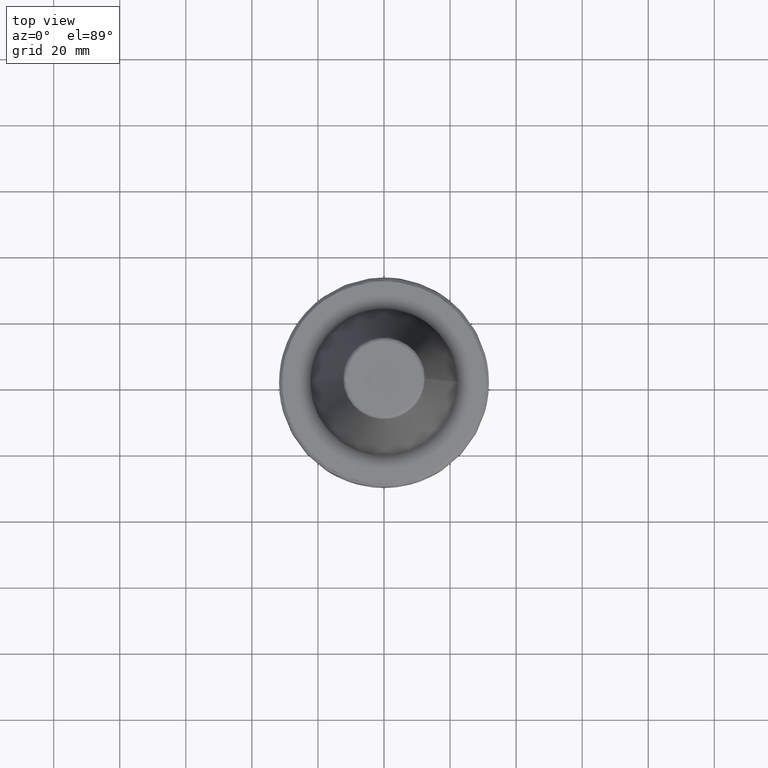
[diagram: clean part render]
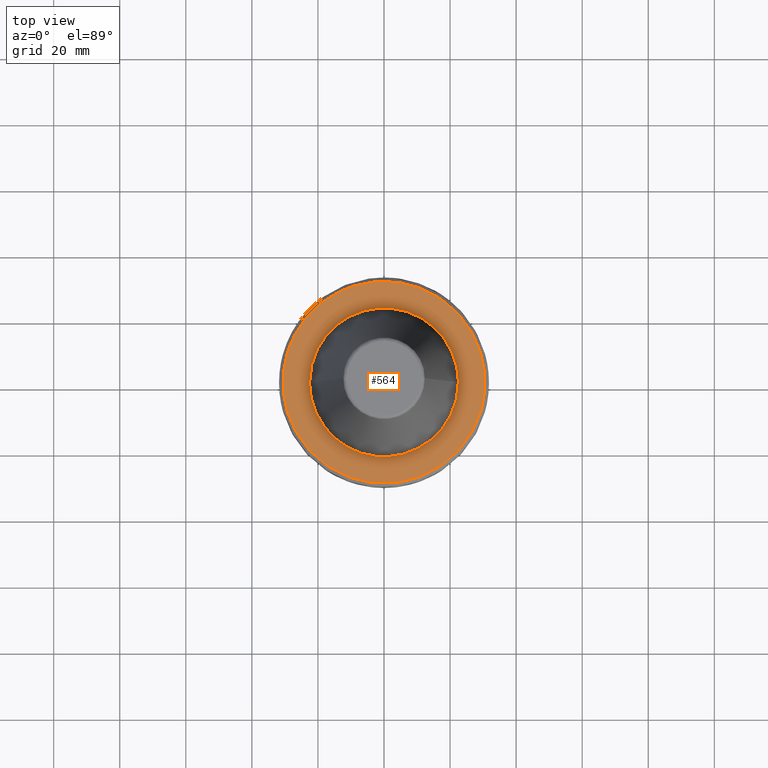
[diagram: same view with one face highlighted and labeled with its STEP entity id]
A machine part, top view. The second image highlights one B-rep face of the part: STEP entity #564.
In plain terms, the highlighted planar face has unit normal (0, 0, 1).
Its self-contained STEP definition (entity closure, byte-faithful):
#9 = CARTESIAN_POINT ( 'NONE',  ( 27.61100680695568600, -13.15427429998765200, -3.200000000000000600 ) ) ;
#20 = CARTESIAN_POINT ( 'NONE',  ( -7.438720675952639600, -29.68542035767848500, -3.199999999999999700 ) ) ;
#52 = CARTESIAN_POINT ( 'NONE',  ( -19.62778218947417800, -23.51603751685868800, -3.199999999999999300 ) ) ;
#58 = CARTESIAN_POINT ( 'NONE',  ( -29.08260568821225400, -9.497984010070885200, -3.199999999999999700 ) ) ;
#62 = CARTESIAN_POINT ( 'NONE',  ( 0.0000000000000000000, 1.466734869172568200E-014, -3.199999999999994400 ) ) ;
#72 = CARTESIAN_POINT ( 'NONE',  ( -3.114025609422949300, -30.46541640380770100, -3.200000000000000200 ) ) ;
#83 = CARTESIAN_POINT ( 'NONE',  ( 26.31643672379539500, -15.62062435595463600, -3.200000000000001100 ) ) ;
#92 = CARTESIAN_POINT ( 'NONE',  ( -22.20554153728639700, -21.03152593330346000, -3.200000000000000200 ) ) ;
#100 = CARTESIAN_POINT ( 'NONE',  ( 29.30593451889330900, 8.749999999999980500, -3.199999999999993500 ) ) ;
#155 = CARTESIAN_POINT ( 'NONE',  ( -12.39175045570897300, 18.78040064549299600, -3.199999999999999700 ) ) ;
#162 = CARTESIAN_POINT ( 'NONE',  ( -4.407618502888016800, 22.06440325785875700, -3.199999999999999300 ) ) ;
#178 = CARTESIAN_POINT ( 'NONE',  ( 4.009555819168163300, 22.13987114982794000, -3.199999999999999700 ) ) ;
#179 = ORIENTED_EDGE ( 'NONE', *, *, #2280, .T. ) ;
#186 = CARTESIAN_POINT ( 'NONE',  ( 21.36063849915200700, -7.086048807701382100, -3.199999999999998800 ) ) ;
#192 = CARTESIAN_POINT ( 'NONE',  ( 11.18287332201877700, 19.53083148215803900, -3.200000000000000600 ) ) ;
#199 = CARTESIAN_POINT ( 'NONE',  ( 17.98264380952407700, -13.61204652636657500, -3.199999999999999700 ) ) ;
#202 = CARTESIAN_POINT ( 'NONE',  ( 9.331192961517226400, -29.12613594598023800, -3.199999999999999300 ) ) ;
#205 = CARTESIAN_POINT ( 'NONE',  ( 18.78040064549280100, 12.39175045570927500, -3.199999999999998800 ) ) ;
#210 = CARTESIAN_POINT ( 'NONE',  ( 8.590524805351991600, -20.79589492657481400, -3.199999999999999700 ) ) ;
#217 = CARTESIAN_POINT ( 'NONE',  ( 22.06440325786003600, 4.407618502884258900, -3.200000000000000200 ) ) ;
#223 = CARTESIAN_POINT ( 'NONE',  ( 2.741286511513688400, -22.37475781689234500, -3.199999999999999700 ) ) ;
#245 = CARTESIAN_POINT ( 'NONE',  ( -7.086048807701388300, -21.36063849915201700, -3.200000000000001100 ) ) ;
#258 = CARTESIAN_POINT ( 'NONE',  ( -13.61204652640028800, -17.98264380950038800, -3.200000000000000200 ) ) ;
#270 = CARTESIAN_POINT ( 'NONE',  ( -20.79589492657008900, -8.590524805360397300, -3.200000000000000200 ) ) ;
#289 = CARTESIAN_POINT ( 'NONE',  ( -22.37479026312430700, -2.741111199249898400, -3.200000000000000600 ) ) ;
#302 = CARTESIAN_POINT ( 'NONE',  ( 13.79955834375945400, -27.29438307719280800, -3.199999999999999700 ) ) ;
#355 = CARTESIAN_POINT ( 'NONE',  ( 26.99856130461180500, -14.37953634110118300, -3.200000000000000200 ) ) ;
#379 = CIRCLE ( 'NONE', #1285, 30.58431457505075100 ) ;
#387 = DIRECTION ( 'NONE',  ( 0.0000000000000000000, -1.000000000000000000, -1.276186135010462200E-016 ) ) ;
#390 = AXIS2_PLACEMENT_3D ( 'NONE', #2706, #1111, #2941 ) ;
#409 = CARTESIAN_POINT ( 'NONE',  ( 5.458850156814379200, -30.10416084471602700, -3.199999999999999700 ) ) ;
#413 = EDGE_CURVE ( 'NONE', #2007, #2800, #379, .T. ) ;
#419 = CARTESIAN_POINT ( 'NONE',  ( -14.35953925149539000, -27.00399422412742800, -3.199999999999999300 ) ) ;
#446 = CARTESIAN_POINT ( 'NONE',  ( -20.95368502148434700, 8.197263642344069000, -3.199999999999999300 ) ) ;
#451 = CARTESIAN_POINT ( 'NONE',  ( -22.50000000000000400, 2.755455298081544800E-015, -3.199999999999999300 ) ) ;
#476 = CARTESIAN_POINT ( 'NONE',  ( -10.69502432680689100, 19.82135572082859200, -3.200000000000000600 ) ) ;
#491 = CARTESIAN_POINT ( 'NONE',  ( -4.183831549484186700, 22.10760170058108200, -3.199999999999999700 ) ) ;
#503 = CARTESIAN_POINT ( 'NONE',  ( 4.071751450878374500, 22.12851860711415200, -3.200000000000000200 ) ) ;
#511 = CARTESIAN_POINT ( 'NONE',  ( 21.03591195338748300, -7.984698353444730200, -3.199999999999999300 ) ) ;
#516 = CARTESIAN_POINT ( 'NONE',  ( 11.99256734167953400, 19.03780993567986700, -3.199999999999999300 ) ) ;
#526 = CARTESIAN_POINT ( 'NONE',  ( 15.36086717163637700, -16.45896426179050900, -3.199999999999999700 ) ) ;
#540 = CARTESIAN_POINT ( 'NONE',  ( 19.82135572083119300, 10.69502432680279600, -3.200000000000000600 ) ) ;
#545 = CARTESIAN_POINT ( 'NONE',  ( 21.54431431264793100, -21.70996927687924600, -3.200000000000000200 ) ) ;
#549 = CARTESIAN_POINT ( 'NONE',  ( 8.370451108365493600, -20.88510905071769100, -3.200000000000001100 ) ) ;
#560 = CARTESIAN_POINT ( 'NONE',  ( 22.10760170058146200, 4.183831549483062200, -3.200000000000000200 ) ) ;
#564 = ADVANCED_FACE ( 'NONE', ( #2639, #2735 ), #1624, .T. ) ;
#566 = CARTESIAN_POINT ( 'NONE',  ( -0.6879287486564484900, -22.50001621479418300, -3.200000000000000200 ) ) ;
#574 = CARTESIAN_POINT ( 'NONE',  ( -22.22708190165376200, 3.501431974159047400, -3.199999999999999700 ) ) ;
#576 = CARTESIAN_POINT ( 'NONE',  ( -7.984698353444732000, -21.03591195338748700, -3.200000000000000200 ) ) ;
#577 = CARTESIAN_POINT ( 'NONE',  ( -27.28410426008951400, -13.84330885026365000, -3.200000000000000200 ) ) ;
#582 = CARTESIAN_POINT ( 'NONE',  ( 8.022211266143289200, -29.51842591295242400, -3.199999999999999300 ) ) ;
#589 = CARTESIAN_POINT ( 'NONE',  ( -9.578915174282531800, -29.04560989628072000, -3.200000000000000200 ) ) ;
#596 = CARTESIAN_POINT ( 'NONE',  ( -16.45896426179448100, -15.36086717162741000, -3.200000000000001100 ) ) ;
#612 = CARTESIAN_POINT ( 'NONE',  ( -20.88510905071626700, -8.370451108368008900, -3.199999999999999700 ) ) ;
#621 = CARTESIAN_POINT ( 'NONE',  ( -18.49999999999999600, 24.35467712833948900, -3.199999999999991300 ) ) ;
#624 = CARTESIAN_POINT ( 'NONE',  ( -16.56085603400545400, 25.82766579420669100, -3.200000000000000200 ) ) ;
#625 = CARTESIAN_POINT ( 'NONE',  ( -22.50000000000000400, 2.755455298081544800E-015, -3.199999999999999300 ) ) ;
#630 = CARTESIAN_POINT ( 'NONE',  ( -14.47569103934079100, 27.05153356260233700, -3.200000000000001100 ) ) ;
#635 = CARTESIAN_POINT ( 'NONE',  ( -12.17478045277671400, 28.05674127324285600, -3.200000000000000600 ) ) ;
#636 = CARTESIAN_POINT ( 'NONE',  ( -12.10176357994678900, 28.08831770797851100, -3.200000000000000200 ) ) ;
#644 = CARTESIAN_POINT ( 'NONE',  ( -11.95872026364780000, 28.14951867897517300, -3.200000000000000200 ) ) ;
#656 = CARTESIAN_POINT ( 'NONE',  ( -11.74385340895946000, 28.24048383201479200, -3.199999999999998800 ) ) ;
#658 = CARTESIAN_POINT ( 'NONE',  ( -11.24038425300771300, 28.44688173158634500, -3.200000000000000200 ) ) ;
#665 = CARTESIAN_POINT ( 'NONE',  ( -10.22499329438831600, 28.83626103397912000, -3.200000000000000600 ) ) ;
#668 = CARTESIAN_POINT ( 'NONE',  ( -9.340167935487325900, 29.12987215588665500, -3.200000000000001100 ) ) ;
#673 = CARTESIAN_POINT ( 'NONE',  ( -8.594763330007086900, 29.35224666533308000, -3.200000000000000200 ) ) ;
#674 = CARTESIAN_POINT ( 'NONE',  ( -8.442993445794760600, 29.39627059819352400, -3.200000000000001500 ) ) ;
#680 = CARTESIAN_POINT ( 'NONE',  ( -8.141340568232401200, 29.48124923291835800, -3.200000000000000600 ) ) ;
#684 = CARTESIAN_POINT ( 'NONE',  ( -7.688059179634872300, 29.60519698498068300, -3.199999999999999700 ) ) ;
#690 = CARTESIAN_POINT ( 'NONE',  ( -6.624788100462759600, 29.86976700628514100, -3.200000000000001100 ) ) ;
#692 = CARTESIAN_POINT ( 'NONE',  ( -5.703788022696000000, 30.05429890996154500, -3.200000000000000200 ) ) ;
#697 = CARTESIAN_POINT ( 'NONE',  ( -3.848954711098727400, 30.36703951691590900, -3.200000000000000200 ) ) ;
#700 = CARTESIAN_POINT ( 'NONE',  ( -2.603266312790086800, 30.49913331156700400, -3.199999999999999700 ) ) ;
#707 = CARTESIAN_POINT ( 'NONE',  ( -1.037282440229544600, 30.56832190550193200, -3.200000000000000600 ) ) ;
#709 = CARTESIAN_POINT ( 'NONE',  ( -0.7285515701980412900, 30.57722589313950900, -3.199999999999999700 ) ) ;
#711 = CARTESIAN_POINT ( 'NONE',  ( -0.1069271606823981000, 30.58574494882358200, -3.200000000000000200 ) ) ;
#714 = CARTESIAN_POINT ( 'NONE',  ( 0.8252062185630970600, 30.58430088160914900, -3.200000000000000600 ) ) ;
#719 = ORIENTED_EDGE ( 'NONE', *, *, #3000, .T. ) ;
#723 = CARTESIAN_POINT ( 'NONE',  ( 1.756429892724695700, 30.54018886217315700, -3.200000000000000600 ) ) ;
#726 = CARTESIAN_POINT ( 'NONE',  ( 2.454392795803937800, 30.48577087148537100, -3.200000000000000200 ) ) ;
#728 = CARTESIAN_POINT ( 'NONE',  ( 2.528533460623735500, 30.47970956005867300, -3.199999999999999700 ) ) ;
#730 = CARTESIAN_POINT ( 'NONE',  ( -18.93590339580232400, 12.15280497094196100, -3.199999999999999700 ) ) ;
#732 = CARTESIAN_POINT ( 'NONE',  ( 2.680059272113283000, 30.46677238502096000, -3.200000000000000200 ) ) ;
#737 = CARTESIAN_POINT ( 'NONE',  ( 2.907181702341881100, 30.44653720226314800, -3.199999999999999300 ) ) ;
#740 = CARTESIAN_POINT ( 'NONE',  ( 3.435970030501877200, 30.39351583441936800, -3.200000000000001500 ) ) ;
#744 = CARTESIAN_POINT ( 'NONE',  ( -27.77681930598629400, -12.80099507029938600, -3.200000000000000200 ) ) ;
#745 = CARTESIAN_POINT ( 'NONE',  ( -4.857303280956157800, -30.19618385838561600, -3.200000000000000600 ) ) ;
#746 = CARTESIAN_POINT ( 'NONE',  ( 4.488890650661606900, 30.26424933309646200, -3.199999999999999700 ) ) ;
#749 = CARTESIAN_POINT ( 'NONE',  ( -20.64043889494947600, 8.988933404968230800, -3.200000000000000600 ) ) ;
#751 = CARTESIAN_POINT ( 'NONE',  ( 6.576107746340010600, 29.91282126790918400, -3.200000000000000600 ) ) ;
#755 = CARTESIAN_POINT ( 'NONE',  ( -22.56109142496701000, -20.65127541911947900, -3.199999999999999700 ) ) ;
#758 = CARTESIAN_POINT ( 'NONE',  ( 8.333223866108296500, 29.45234853339185200, -3.200000000000000200 ) ) ;
#763 = CIRCLE ( 'NONE', #1058, 30.58431457505075100 ) ;
#766 = CARTESIAN_POINT ( 'NONE',  ( 11.80488663217959200, 28.31907149283381000, -3.199999999999999700 ) ) ;
#772 = CARTESIAN_POINT ( 'NONE',  ( 24.36043102570795300, -18.50078877833959000, -3.199999999999999700 ) ) ;
#773 = CARTESIAN_POINT ( 'NONE',  ( -24.35467712833948200, 18.50000000000000000, -3.199999999999992200 ) ) ;
#774 = CARTESIAN_POINT ( 'NONE',  ( 13.99881594514026300, 27.30134385075362900, -3.200000000000000200 ) ) ;
#785 = CARTESIAN_POINT ( 'NONE',  ( 16.13498759199469400, 25.98207429179466400, -3.200000000000000200 ) ) ;
#789 = CARTESIAN_POINT ( 'NONE',  ( 16.20252111302220800, 25.94001894739672000, -3.200000000000000600 ) ) ;
#796 = CARTESIAN_POINT ( 'NONE',  ( 16.33427142386733900, 25.85726144148922100, -3.200000000000000200 ) ) ;
#798 = CARTESIAN_POINT ( 'NONE',  ( 22.63882571492048600, -20.58104395216734200, -3.200000000000000200 ) ) ;
#801 = CARTESIAN_POINT ( 'NONE',  ( 16.53138120580552700, 25.73240088654140200, -3.199999999999999700 ) ) ;
#803 = CARTESIAN_POINT ( 'NONE',  ( 16.98769424002150100, 25.43598951905729100, -3.200000000000000200 ) ) ;
#805 = CARTESIAN_POINT ( 'NONE',  ( 17.88588114722745500, 24.82288649366540800, -3.200000000000000200 ) ) ;
#807 = CARTESIAN_POINT ( 'NONE',  ( 18.63100279130232900, 24.26260340260329700, -3.199999999999999300 ) ) ;
#813 = CARTESIAN_POINT ( 'NONE',  ( 19.23818591257809300, 23.77638626441000000, -3.200000000000000200 ) ) ;
#818 = CARTESIAN_POINT ( 'NONE',  ( 19.36078262650642800, 23.67667543167849300, -3.200000000000001100 ) ) ;
#824 = CARTESIAN_POINT ( 'NONE',  ( 19.60237854233164600, 23.47705769606649500, -3.200000000000001100 ) ) ;
#825 = CARTESIAN_POINT ( 'NONE',  ( 19.96233499371120600, 23.17496761740666100, -3.200000000000000200 ) ) ;
#828 = CARTESIAN_POINT ( 'NONE',  ( 20.78517142375569200, 22.45144644050765900, -3.200000000000000200 ) ) ;
#830 = CARTESIAN_POINT ( 'NONE',  ( -24.73772846015907600, -18.00390437552178100, -3.200000000000000600 ) ) ;
#834 = CARTESIAN_POINT ( 'NONE',  ( 21.46121072406610600, 21.79932372883518700, -3.200000000000000200 ) ) ;
#836 = CARTESIAN_POINT ( 'NONE',  ( -8.896980882711639900, 20.66783356944006700, -3.199999999999999700 ) ) ;
#840 = CARTESIAN_POINT ( 'NONE',  ( 22.77429056695474300, 20.45246270162109400, -3.200000000000001100 ) ) ;
#842 = CARTESIAN_POINT ( 'NONE',  ( 23.59206616273494100, 19.50355204636023000, -3.199999999999999700 ) ) ;
#846 = CARTESIAN_POINT ( 'NONE',  ( 24.54047191476543300, 18.25550594148994000, -3.200000000000000600 ) ) ;
#847 = CARTESIAN_POINT ( 'NONE',  ( -4.115307463143350800, 22.12045849206799600, -3.199999999999999700 ) ) ;
#848 = CARTESIAN_POINT ( 'NONE',  ( 24.72355445175357900, 18.00675945254044300, -3.200000000000000200 ) ) ;
#849 = CARTESIAN_POINT ( 'NONE',  ( 25.08445269893013600, 17.50055599937444800, -3.200000000000000200 ) ) ;
#850 = CARTESIAN_POINT ( 'NONE',  ( 25.61393462947731700, 16.73340307638303400, -3.200000000000000200 ) ) ;
#851 = CARTESIAN_POINT ( 'NONE',  ( 22.31609819896382200, -2.907458251744042200, -3.200000000000000600 ) ) ;
#852 = CARTESIAN_POINT ( 'NONE',  ( 26.10782023937147400, 15.94270692366432000, -3.200000000000000200 ) ) ;
#858 = CARTESIAN_POINT ( 'NONE',  ( 13.89121605744946600, -27.24785232258912500, -3.199999999999998800 ) ) ;
#861 = CARTESIAN_POINT ( 'NONE',  ( 5.873028755120320600, 21.74157624393063400, -3.200000000000000600 ) ) ;
#863 = CARTESIAN_POINT ( 'NONE',  ( 26.46043628646557600, 15.33791319426163500, -3.199999999999999300 ) ) ;
#864 = CARTESIAN_POINT ( 'NONE',  ( 26.49765628487140000, 15.27351905694589700, -3.200000000000000600 ) ) ;
#867 = CARTESIAN_POINT ( 'NONE',  ( 26.57327955334312700, 15.14158967653228200, -3.199999999999999300 ) ) ;
#868 = CARTESIAN_POINT ( 'NONE',  ( 20.95368502148340500, -8.197263642347369500, -3.199999999999999700 ) ) ;
#870 = CARTESIAN_POINT ( 'NONE',  ( 8.703095408790513700, -29.32115263378182800, -3.199999999999999700 ) ) ;
#876 = CARTESIAN_POINT ( 'NONE',  ( 26.68593816532839800, 14.94335966608096700, -3.200000000000000600 ) ) ;
#878 = EDGE_LOOP ( 'NONE', ( #1134, #1409, #4117, #3799, #1494, #1047 ) ) ;
#879 = CARTESIAN_POINT ( 'NONE',  ( 12.23098025896375600, 18.88550870197690300, -3.199999999999999700 ) ) ;
#881 = CARTESIAN_POINT ( 'NONE',  ( 26.94337422490445300, 14.47847139621148000, -3.199999999999999300 ) ) ;
#882 = CARTESIAN_POINT ( 'NONE',  ( 27.43651020383163100, 13.53928854120698800, -3.200000000000001500 ) ) ;
#886 = CARTESIAN_POINT ( 'NONE',  ( 13.42792791067997600, -18.06135158014202000, -3.199999999999999700 ) ) ;
#887 = CARTESIAN_POINT ( 'NONE',  ( 28.33583760078616000, 11.62329757013587900, -3.200000000000000600 ) ) ;
#895 = CARTESIAN_POINT ( 'NONE',  ( 20.66783356944120300, 8.896980882709847500, -3.200000000000000200 ) ) ;
#896 = CARTESIAN_POINT ( 'NONE',  ( 29.30593451889330900, 8.749999999999980500, -3.199999999999993500 ) ) ;
#899 = CARTESIAN_POINT ( 'NONE',  ( -14.17277443620453800, -27.10247095660120900, -3.199999999999999300 ) ) ;
#900 = CARTESIAN_POINT ( 'NONE',  ( 7.603831144541866000, -21.18878749288407800, -3.200000000000000200 ) ) ;
#902 = CARTESIAN_POINT ( 'NONE',  ( 28.95764183663322900, 9.916519147397023600, -3.200000000000000200 ) ) ;
#909 = CARTESIAN_POINT ( 'NONE',  ( 22.12045798509555900, 4.115310202398825700, -3.200000000000000600 ) ) ;
#910 = CARTESIAN_POINT ( 'NONE',  ( 13.33348093168641700, -27.52628396581056700, -3.200000000000000200 ) ) ;
#912 = CARTESIAN_POINT ( 'NONE',  ( -2.907343231839132800, -22.31611948088118800, -3.200000000000000600 ) ) ;
#918 = VERTEX_POINT ( 'NONE', #1662 ) ;
#938 = CARTESIAN_POINT ( 'NONE',  ( -8.197263642347373000, -20.95368502148340900, -3.199999999999999700 ) ) ;
#940 = EDGE_LOOP ( 'NONE', ( #179, #719 ) ) ;
#953 = CARTESIAN_POINT ( 'NONE',  ( -18.06135158014722800, -13.42792791066820300, -3.200000000000000600 ) ) ;
#958 = B_SPLINE_CURVE_WITH_KNOTS ( 'NONE', 3,
 ( #2775, #58, #4005, #2847, #1548, #744, #3828, #3204, #1185, #577, #3209, #4136, #4012, #2488, #2450, #1811, #1400, #830, #1752, #1452, #755, #2236, #92, #1375, #1219, #52, #1052, #3919, #2805, #983, #419, #899, #2540, #1046, #1776, #4025, #3613, #2758, #589, #3953, #3878, #1254, #20, #2836, #1478, #3034, #745, #1678, #990, #72, #1862, #1338, #2962, #1813, #1993, #1326, #3766, #1156, #3068, #409, #2647, #582, #870, #1529, #3341, #2752, #202, #2203, #1736, #2831, #910, #2537, #302, #858, #1245, #1144, #3914, #3337, #1926, #545, #3989, #3482, #1516, #798, #2545, #772, #3585, #3968, #3820, #2330, #1484, #2667, #83, #355, #2289, #3721, #1095, #1368, #9, #4003, #3574, #2997 ),
 .UNSPECIFIED., .F., .F.,
 ( 4, 1, 1, 1, 1, 2, 2, 1, 1, 1, 1, 2, 2, 1, 1, 1, 2, 2, 2, 1, 1, 1, 2, 2, 1, 1, 1, 1, 2, 2, 1, 1, 1, 1, 2, 2, 2, 1, 1, 1, 1, 2, 2, 1, 1, 1, 1, 2, 2, 1, 1, 1, 2, 2, 2, 1, 1, 1, 2, 2, 1, 1, 1, 1, 2, 2, 1, 1, 1, 1, 2, 2, 4 ),
 ( 0.0000000000000000000, 0.03125000000000009000, 0.04687500000000010400, 0.05468750000000011100, 0.05859375000000011100, 0.06054687500000011100, 0.06250000000000011100, 0.09374999999999979200, 0.1093749999999996400, 0.1171874999999995600, 0.1210937499999994600, 0.1230468749999994000, 0.1249999999999993300, 0.1562499999999971400, 0.1718749999999961400, 0.1796874999999955900, 0.1835937499999953900, 0.1874999999999952000, 0.2499999999999946700, 0.2812499999999943900, 0.2968749999999942800, 0.3046874999999943400, 0.3085937499999943400, 0.3124999999999943400, 0.3437499999999940000, 0.3593749999999938400, 0.3671874999999937300, 0.3710937499999936700, 0.3730468749999936700, 0.3749999999999936700, 0.4062499999999942800, 0.4218749999999945600, 0.4296874999999946700, 0.4335937499999947800, 0.4355468749999948400, 0.4374999999999948900, 0.4999999999999958900, 0.5312499999999964500, 0.5468749999999966700, 0.5546874999999967800, 0.5585937499999968900, 0.5605468749999968900, 0.5624999999999968900, 0.5937499999999971100, 0.6093749999999973400, 0.6171874999999973400, 0.6210937499999973400, 0.6230468749999973400, 0.6249999999999973400, 0.6562499999999973400, 0.6718749999999972200, 0.6796874999999973400, 0.6835937499999973400, 0.6874999999999973400, 0.7499999999999970000, 0.7812499999999968900, 0.7968749999999970000, 0.8046874999999970000, 0.8085937499999970000, 0.8124999999999970000, 0.8437499999999972200, 0.8593749999999973400, 0.8671874999999975600, 0.8710937499999976700, 0.8730468749999976700, 0.8749999999999976700, 0.9062499999999982200, 0.9218749999999984500, 0.9296874999999985600, 0.9335937499999986700, 0.9355468749999987800, 0.9374999999999988900, 1.000000000000000000 ),
 .UNSPECIFIED. ) ;
#963 = CARTESIAN_POINT ( 'NONE',  ( -21.18878749287234700, -7.603831144579803700, -3.199999999999998800 ) ) ;
#983 = CARTESIAN_POINT ( 'NONE',  ( -14.63881711983233200, -26.85489300922699100, -3.200000000000000600 ) ) ;
#990 = CARTESIAN_POINT ( 'NONE',  ( -4.705085878603386900, -30.22027126947340700, -3.200000000000000600 ) ) ;
#1002 = CARTESIAN_POINT ( 'NONE',  ( -22.50000000000000400, 2.755455298081544800E-015, -3.199999999999999300 ) ) ;
#1046 = CARTESIAN_POINT ( 'NONE',  ( -13.24394569621862800, -27.58067624819064200, -3.200000000000000600 ) ) ;
#1047 = ORIENTED_EDGE ( 'NONE', *, *, #2811, .T. ) ;
#1052 = CARTESIAN_POINT ( 'NONE',  ( -17.59524950982610700, -25.03042619208500200, -3.200000000000000200 ) ) ;
#1058 = AXIS2_PLACEMENT_3D ( 'NONE', #62, #2368, #387 ) ;
#1065 = CARTESIAN_POINT ( 'NONE',  ( -21.03591195339058500, 7.984698353433742600, -3.200000000000000600 ) ) ;
#1095 = CARTESIAN_POINT ( 'NONE',  ( 27.54438001541412700, -13.29323302809357600, -3.200000000000000200 ) ) ;
#1104 = CARTESIAN_POINT ( 'NONE',  ( -26.43773944749311900, 15.48610090931968700, -3.200000000000000600 ) ) ;
#1111 = DIRECTION ( 'NONE',  ( 0.0000000000000000000, 0.0000000000000000000, 1.000000000000000000 ) ) ;
#1116 = EDGE_CURVE ( 'NONE', #2800, #3380, #1699, .T. ) ;
#1134 = ORIENTED_EDGE ( 'NONE', *, *, #1716, .T. ) ;
#1140 = CARTESIAN_POINT ( 'NONE',  ( -12.63533988221804100, 18.61742605470986000, -3.200000000000000200 ) ) ;
#1144 = CARTESIAN_POINT ( 'NONE',  ( 16.91770336017261700, -25.53517509609310600, -3.200000000000000200 ) ) ;
#1154 = CARTESIAN_POINT ( 'NONE',  ( -8.458563634142274500, 20.84958280862222700, -3.200000000000000200 ) ) ;
#1156 = CARTESIAN_POINT ( 'NONE',  ( 4.560392810196569600, -30.24244440558976200, -3.200000000000001100 ) ) ;
#1162 = CARTESIAN_POINT ( 'NONE',  ( 22.50000000000000400, 0.0000000000000000000, -3.199999999999999300 ) ) ;
#1173 = CARTESIAN_POINT ( 'NONE',  ( -1.375857497237935400, 22.49996757040714000, -3.199999999999999700 ) ) ;
#1178 = CARTESIAN_POINT ( 'NONE',  ( 22.17743819738469600, -3.797954953886299600, -3.200000000000000600 ) ) ;
#1185 = CARTESIAN_POINT ( 'NONE',  ( -27.65365956857718600, -13.06437642884289800, -3.200000000000000200 ) ) ;
#1187 = CARTESIAN_POINT ( 'NONE',  ( 7.686207123274499500, 21.14787063409919600, -3.200000000000000600 ) ) ;
#1194 = CARTESIAN_POINT ( 'NONE',  ( 20.64043889494423200, -8.988933404973398200, -3.200000000000001100 ) ) ;
#1200 = CARTESIAN_POINT ( 'NONE',  ( 14.81177920650271000, 17.00797338683744500, -3.200000000000000600 ) ) ;
#1207 = CARTESIAN_POINT ( 'NONE',  ( 12.63533988221884200, -18.61742605471019700, -3.200000000000000200 ) ) ;
#1216 = CARTESIAN_POINT ( 'NONE',  ( 20.84958280862257900, 8.458563634141711400, -3.200000000000000200 ) ) ;
#1219 = CARTESIAN_POINT ( 'NONE',  ( -20.89129424423141800, -22.40114452925218900, -3.200000000000000200 ) ) ;
#1221 = CARTESIAN_POINT ( 'NONE',  ( -22.13986916256529700, 4.009566559497096200, -3.200000000000000200 ) ) ;
#1223 = CARTESIAN_POINT ( 'NONE',  ( 5.341505914814308500, -21.86223353763812900, -3.199999999999999700 ) ) ;
#1238 = CARTESIAN_POINT ( 'NONE',  ( 22.50000000000000400, 1.376388306145680500, -3.200000000000000200 ) ) ;
#1245 = CARTESIAN_POINT ( 'NONE',  ( 15.48792760815194000, -26.42690957762343400, -3.199999999999998400 ) ) ;
#1246 = CARTESIAN_POINT ( 'NONE',  ( -3.797919010166013600, -22.17744484798386800, -3.200000000000001100 ) ) ;
#1254 = CARTESIAN_POINT ( 'NONE',  ( -8.608449995097272400, -29.35905586417358700, -3.199999999999999700 ) ) ;
#1262 = CARTESIAN_POINT ( 'NONE',  ( -8.988933404976533500, -20.64043889494298900, -3.199999999999999700 ) ) ;
#1273 = CARTESIAN_POINT ( 'NONE',  ( -18.61742605471202700, -12.63533988221470800, -3.199999999999999700 ) ) ;
#1285 = AXIS2_PLACEMENT_3D ( 'NONE', #1874, #2605, #2974 ) ;
#1290 = CARTESIAN_POINT ( 'NONE',  ( -22.15133245634663700, 3.946100473368277900, -3.200000000000000200 ) ) ;
#1291 = CARTESIAN_POINT ( 'NONE',  ( -21.86223353762273500, -5.341505914864100600, -3.200000000000000600 ) ) ;
#1326 = CARTESIAN_POINT ( 'NONE',  ( 4.319105167327790300, -30.27808647421277000, -3.199999999999999300 ) ) ;
#1338 = CARTESIAN_POINT ( 'NONE',  ( 0.7805261269163517000, -30.58432787733083600, -3.200000000000001100 ) ) ;
#1362 = CARTESIAN_POINT ( 'NONE',  ( -29.30593451889329200, 8.750000000000033800, -3.199999999999993500 ) ) ;
#1368 = CARTESIAN_POINT ( 'NONE',  ( 27.58831379343226000, -13.20180910046797300, -3.199999999999998800 ) ) ;
#1375 = CARTESIAN_POINT ( 'NONE',  ( -22.13473294562368900, -21.10604030068857600, -3.199999999999999700 ) ) ;
#1400 = CARTESIAN_POINT ( 'NONE',  ( -25.23910393721066500, -17.27398592321673800, -3.200000000000001100 ) ) ;
#1409 = ORIENTED_EDGE ( 'NONE', *, *, #1440, .T. ) ;
#1435 = CARTESIAN_POINT ( 'NONE',  ( -28.78023418527451600, 10.51070166326775800, -3.200000000000000200 ) ) ;
#1440 = EDGE_CURVE ( 'NONE', #4080, #2007, #958, .T. ) ;
#1441 = VERTEX_POINT ( 'NONE', #1362 ) ;
#1452 = CARTESIAN_POINT ( 'NONE',  ( -23.04904609324316300, -20.11097302514834300, -3.199999999999999700 ) ) ;
#1461 = CARTESIAN_POINT ( 'NONE',  ( -22.13216582914423100, 4.051871761184235000, -3.200000000000000200 ) ) ;
#1478 = CARTESIAN_POINT ( 'NONE',  ( -5.357254148549006200, -30.11268354678315300, -3.200000000000000200 ) ) ;
#1482 = CARTESIAN_POINT ( 'NONE',  ( -17.00797338682269500, 14.81177920651246400, -3.200000000000000600 ) ) ;
#1484 = CARTESIAN_POINT ( 'NONE',  ( 25.18089566416714200, -17.35872434408001300, -3.200000000000000200 ) ) ;
#1494 = ORIENTED_EDGE ( 'NONE', *, *, #2725, .T. ) ;
#1501 = CARTESIAN_POINT ( 'NONE',  ( -8.324524703927975700, 20.90345235396907600, -3.199999999999999700 ) ) ;
#1514 = CARTESIAN_POINT ( 'NONE',  ( 1.715646394992351700, 22.45307472456536100, -3.200000000000000600 ) ) ;
#1516 = CARTESIAN_POINT ( 'NONE',  ( 21.98943496481060900, -21.25737027114399100, -3.199999999999999700 ) ) ;
#1518 = CARTESIAN_POINT ( 'NONE',  ( -20.98673507276603100, 8.112282896141666200, -3.200000000000000600 ) ) ;
#1519 = CARTESIAN_POINT ( 'NONE',  ( 22.13986916256529000, -4.009566559498702000, -3.199999999999999300 ) ) ;
#1522 = CARTESIAN_POINT ( 'NONE',  ( 8.112282896138385300, 20.98673507276721400, -3.200000000000000200 ) ) ;
#1529 = CARTESIAN_POINT ( 'NONE',  ( 9.042334779831751500, -29.21737119051607600, -3.200000000000000200 ) ) ;
#1530 = CARTESIAN_POINT ( 'NONE',  ( 19.53083148214621900, -11.18287332203636600, -3.200000000000000200 ) ) ;
#1541 = CARTESIAN_POINT ( 'NONE',  ( 17.23607257883289300, 14.49938022713325700, -3.200000000000000200 ) ) ;
#1548 = CARTESIAN_POINT ( 'NONE',  ( -27.91867295085388500, -12.49063015164102500, -3.200000000000000200 ) ) ;
#1549 = CARTESIAN_POINT ( 'NONE',  ( 12.39175045571029600, -18.78040064549236700, -3.200000000000000200 ) ) ;
#1558 = CARTESIAN_POINT ( 'NONE',  ( 20.90345235396888100, 8.324524703928553000, -3.200000000000000200 ) ) ;
#1564 = CARTESIAN_POINT ( 'NONE',  ( 4.407618502877016700, -22.06440325786277500, -3.200000000000000600 ) ) ;
#1578 = CARTESIAN_POINT ( 'NONE',  ( -4.009555819172765800, -22.13987114982767300, -3.200000000000000200 ) ) ;
#1595 = CARTESIAN_POINT ( 'NONE',  ( -11.18287332204048700, -19.53083148214458500, -3.200000000000000600 ) ) ;
#1612 = CARTESIAN_POINT ( 'NONE',  ( -17.98264380950361400, 13.61204652639205500, -3.199999999999999700 ) ) ;
#1613 = CARTESIAN_POINT ( 'NONE',  ( -18.78040064549380300, -12.39175045570773800, -3.200000000000000600 ) ) ;
#1622 = CARTESIAN_POINT ( 'NONE',  ( -22.06440325785796100, -4.407618502892575000, -3.200000000000000200 ) ) ;
#1624 = PLANE ( 'NONE',  #390 ) ;
#1662 = CARTESIAN_POINT ( 'NONE',  ( 22.50000000000000400, 0.0000000000000000000, -3.199999999999999300 ) ) ;
#1678 = CARTESIAN_POINT ( 'NONE',  ( -4.757131534854949000, -30.21212539776216800, -3.200000000000000600 ) ) ;
#1699 = B_SPLINE_CURVE_WITH_KNOTS ( 'NONE', 3,
 ( #896, #902, #887, #882, #881, #876, #867, #864, #863, #852, #850, #849, #848, #846, #842, #840, #834, #828, #825, #824, #818, #813, #807, #805, #803, #801, #796, #789, #785, #774, #766, #758, #751, #746, #740, #737, #732, #728, #726, #723, #714, #711, #709, #707, #700, #697, #692, #690, #684, #680, #674, #673, #668, #665, #658, #656, #644, #636, #635, #630, #624, #621 ),
 .UNSPECIFIED., .F., .F.,
 ( 4, 1, 1, 1, 1, 2, 2, 1, 2, 2, 2, 1, 1, 2, 2, 1, 1, 1, 2, 2, 2, 1, 1, 1, 1, 2, 2, 1, 2, 2, 2, 1, 1, 2, 2, 1, 1, 1, 2, 2, 4 ),
 ( 0.0000000000000000000, 0.06249999999999734900, 0.09374999999999600300, 0.1093749999999953200, 0.1171874999999950300, 0.1210937499999949600, 0.1249999999999948900, 0.1562499999999950900, 0.1718749999999952500, 0.1874999999999954200, 0.2499999999999961700, 0.2812499999999964500, 0.2968749999999966700, 0.3046874999999968400, 0.3124999999999970000, 0.3437499999999977800, 0.3593749999999981700, 0.3671874999999983300, 0.3710937499999984500, 0.3749999999999985600, 0.4999999999999987800, 0.5624999999999988900, 0.5937499999999990000, 0.6093749999999990000, 0.6171874999999990000, 0.6210937499999990000, 0.6249999999999990000, 0.6562499999999988900, 0.6718749999999988900, 0.6874999999999988900, 0.7499999999999987800, 0.7812499999999988900, 0.7968749999999988900, 0.8046874999999988900, 0.8124999999999988900, 0.8437499999999987800, 0.8593749999999986700, 0.8671874999999986700, 0.8710937499999986700, 0.8749999999999987800, 1.000000000000000000 ),
 .UNSPECIFIED. ) ;
#1713 = CARTESIAN_POINT ( 'NONE',  ( 29.30593451889329200, -8.750000000000001800, -3.199999999999995300 ) ) ;
#1716 = EDGE_CURVE ( 'NONE', #1441, #4080, #3515, .T. ) ;
#1718 = CARTESIAN_POINT ( 'NONE',  ( -22.45304634867162000, 1.715799754908170300, -3.200000000000000600 ) ) ;
#1727 = CARTESIAN_POINT ( 'NONE',  ( -19.53083148215308600, 11.18287332202958400, -3.199999999999999300 ) ) ;
#1736 = CARTESIAN_POINT ( 'NONE',  ( 11.34454123682887200, -28.42400519016858600, -3.200000000000001100 ) ) ;
#1752 = CARTESIAN_POINT ( 'NONE',  ( -23.99031363752471800, -19.00230350504062900, -3.200000000000000200 ) ) ;
#1776 = CARTESIAN_POINT ( 'NONE',  ( -12.11250377919313700, -28.10533704282527600, -3.200000000000001100 ) ) ;
#1781 = CARTESIAN_POINT ( 'NONE',  ( -12.47437238289334600, 18.72563884435544800, -3.200000000000000200 ) ) ;
#1809 = CARTESIAN_POINT ( 'NONE',  ( -15.36086717163463800, 16.45896426178976300, -3.200000000000001100 ) ) ;
#1811 = CARTESIAN_POINT ( 'NONE',  ( -25.26695455758237000, -17.23321866383328400, -3.200000000000001100 ) ) ;
#1813 = CARTESIAN_POINT ( 'NONE',  ( 3.304367424488805000, -30.40973943781709500, -3.200000000000000600 ) ) ;
#1820 = CARTESIAN_POINT ( 'NONE',  ( -6.571610993404996200, 21.54071728403503300, -3.199999999999999700 ) ) ;
#1835 = CARTESIAN_POINT ( 'NONE',  ( 3.501364879195867800, 22.22709431610727600, -3.200000000000000600 ) ) ;
#1844 = CARTESIAN_POINT ( 'NONE',  ( 22.12851860711453600, -4.071751450877114200, -3.200000000000000200 ) ) ;
#1853 = CARTESIAN_POINT ( 'NONE',  ( 8.237955812653522600, 20.93772414133914200, -3.199999999999999700 ) ) ;
#1861 = CARTESIAN_POINT ( 'NONE',  ( 19.03780993567572800, -11.99256734168571200, -3.200000000000000200 ) ) ;
#1862 = CARTESIAN_POINT ( 'NONE',  ( -1.561052253832720300, -30.58428797049064600, -3.200000000000001100 ) ) ;
#1869 = CARTESIAN_POINT ( 'NONE',  ( 18.45365423866382000, 12.87560569879649600, -3.200000000000000200 ) ) ;
#1874 = CARTESIAN_POINT ( 'NONE',  ( 0.0000000000000000000, 1.466734869172568200E-014, -3.199999999999994400 ) ) ;
#1875 = CARTESIAN_POINT ( 'NONE',  ( 10.69502432678837800, -19.82135572083744200, -3.199999999999999700 ) ) ;
#1882 = CARTESIAN_POINT ( 'NONE',  ( 21.54071728404044400, 6.571610993388965500, -3.200000000000000200 ) ) ;
#1886 = CARTESIAN_POINT ( 'NONE',  ( 4.183831549480899500, -22.10760170058227900, -3.200000000000000200 ) ) ;
#1907 = CARTESIAN_POINT ( 'NONE',  ( -4.071751450877116900, -22.12851860711453300, -3.199999999999999700 ) ) ;
#1918 = CARTESIAN_POINT ( 'NONE',  ( -22.50000000000000700, 0.6880163828565797300, -3.200000000000001100 ) ) ;
#1919 = CARTESIAN_POINT ( 'NONE',  ( -11.99256734168715800, -19.03780993567515600, -3.200000000000000200 ) ) ;
#1926 = CARTESIAN_POINT ( 'NONE',  ( 21.01696416252155700, -22.22623960065148900, -3.199999999999999300 ) ) ;
#1930 = CARTESIAN_POINT ( 'NONE',  ( -19.82135572081725200, -10.69502432682423000, -3.200000000000000600 ) ) ;
#1944 = CARTESIAN_POINT ( 'NONE',  ( -22.10760170058084000, -4.183831549485550900, -3.200000000000000200 ) ) ;
#1993 = CARTESIAN_POINT ( 'NONE',  ( 3.981098828325630100, -30.32522191696599000, -3.200000000000001100 ) ) ;
#2007 = VERTEX_POINT ( 'NONE', #1713 ) ;
#2114 = CARTESIAN_POINT ( 'NONE',  ( -14.49938022714616500, 17.23607257882436300, -3.199999999999999700 ) ) ;
#2127 = CARTESIAN_POINT ( 'NONE',  ( -21.36063849916189700, 7.086048807666240500, -3.199999999999999300 ) ) ;
#2137 = CARTESIAN_POINT ( 'NONE',  ( -13.42792791067768300, 18.06135158014102500, -3.200000000000000200 ) ) ;
#2152 = CARTESIAN_POINT ( 'NONE',  ( -4.719991316688983800, 22.00072453872944300, -3.200000000000000600 ) ) ;
#2160 = CARTESIAN_POINT ( 'NONE',  ( 22.49999999999999600, -0.6880163828697204400, -3.199999999999998800 ) ) ;
#2170 = CARTESIAN_POINT ( 'NONE',  ( 3.946081902440961000, 22.15133589249003200, -3.200000000000000600 ) ) ;
#2176 = CARTESIAN_POINT ( 'NONE',  ( 21.74157624390884500, -5.873028755191072900, -3.200000000000000200 ) ) ;
#2181 = CARTESIAN_POINT ( 'NONE',  ( 10.02279629557633300, 20.16961076430403600, -3.200000000000000600 ) ) ;
#2188 = CARTESIAN_POINT ( 'NONE',  ( 18.88550870197563500, -12.23098025896565000, -3.200000000000000200 ) ) ;
#2190 = CARTESIAN_POINT ( 'NONE',  ( -29.30593451889329900, -8.749999999999978700, -3.199999999999995300 ) ) ;
#2200 = CARTESIAN_POINT ( 'NONE',  ( 18.72563884435662000, 12.47437238289156800, -3.199999999999999300 ) ) ;
#2203 = CARTESIAN_POINT ( 'NONE',  ( 10.17404257736498800, -28.85454279252668600, -3.199999999999999700 ) ) ;
#2206 = CARTESIAN_POINT ( 'NONE',  ( 8.896980882703543300, -20.66783356944393200, -3.199999999999999300 ) ) ;
#2215 = CARTESIAN_POINT ( 'NONE',  ( 22.00072453873180600, 4.719991316681966300, -3.200000000000000200 ) ) ;
#2222 = CARTESIAN_POINT ( 'NONE',  ( 4.115307463144500100, -22.12045849206793200, -3.200000000000000600 ) ) ;
#2234 = CARTESIAN_POINT ( 'NONE',  ( -5.873028755191068500, -21.74157624390884200, -3.200000000000001100 ) ) ;
#2236 = CARTESIAN_POINT ( 'NONE',  ( -22.34825637510536800, -20.87982665237509000, -3.200000000000000200 ) ) ;
#2245 = CARTESIAN_POINT ( 'NONE',  ( -12.23098025896354500, -18.88550870197710900, -3.200000000000000200 ) ) ;
#2261 = CARTESIAN_POINT ( 'NONE',  ( -20.66783356943510700, -8.896980882719226700, -3.200000000000000200 ) ) ;
#2278 = CARTESIAN_POINT ( 'NONE',  ( -22.12045798509555200, -4.115310202398622300, -3.200000000000000200 ) ) ;
#2280 = EDGE_CURVE ( 'NONE', #3856, #918, #4008, .T. ) ;
#2289 = CARTESIAN_POINT ( 'NONE',  ( 27.32133677086658000, -13.74839770497310600, -3.199999999999999700 ) ) ;
#2330 = CARTESIAN_POINT ( 'NONE',  ( 25.15049554832426500, -17.40274506740398400, -3.199999999999999300 ) ) ;
#2368 = DIRECTION ( 'NONE',  ( -0.0000000000000000000, -1.224606353822377300E-016, 1.000000000000000000 ) ) ;
#2447 = VERTEX_POINT ( 'NONE', #3831 ) ;
#2450 = CARTESIAN_POINT ( 'NONE',  ( -25.32397030503437600, -17.14932757286770800, -3.199999999999999700 ) ) ;
#2458 = CARTESIAN_POINT ( 'NONE',  ( -19.03780993567813700, 11.99256734168333200, -3.200000000000000200 ) ) ;
#2469 = CARTESIAN_POINT ( 'NONE',  ( -11.67597141481949700, 19.24838585783297900, -3.200000000000001100 ) ) ;
#2481 = CARTESIAN_POINT ( 'NONE',  ( -4.251028217307362100, 22.09485092206773900, -3.200000000000001100 ) ) ;
#2488 = CARTESIAN_POINT ( 'NONE',  ( -25.40916637817199900, -17.02330348438457400, -3.200000000000000600 ) ) ;
#2490 = CARTESIAN_POINT ( 'NONE',  ( 4.051866326834534100, 22.13216683465163800, -3.200000000000001100 ) ) ;
#2496 = CARTESIAN_POINT ( 'NONE',  ( 21.14787063408966400, -7.686207123305460500, -3.200000000000000600 ) ) ;
#2504 = CARTESIAN_POINT ( 'NONE',  ( 11.75138774875418000, 19.18907189198790100, -3.200000000000001100 ) ) ;
#2510 = CARTESIAN_POINT ( 'NONE',  ( 17.00797338681919900, -14.81177920651095200, -3.200000000000000600 ) ) ;
#2516 = B_SPLINE_CURVE_WITH_KNOTS ( 'NONE', 3,
 ( #1162, #2160, #2791, #851, #3105, #1178, #3410, #1519, #3715, #1844, #4016, #2176, #186, #2496, #511, #2808, #868, #3120, #1194, #3428, #1530, #3729, #1861, #4030, #2188, #199, #2510, #526, #2821, #886, #3135, #1207, #3446, #1549, #3737, #1875, #4047, #2206, #210, #2525, #549, #2835, #900, #3150, #1223, #3458, #1564, #3754, #1886, #4058, #2222, #223, #2539, #566, #2853, #912, #3164, #1246, #3473, #1578, #3767, #1907, #4067, #2234, #245, #2554, #576, #2868, #938, #3176, #1262, #3492, #1595, #3777, #1919, #4086, #2245, #258, #2572, #596, #2880, #953, #3197, #1273, #3504, #1613, #3788, #1930, #4096, #2261, #270, #2582, #612, #2894, #963, #3213, #1291, #3514, #1622, #3802, #1944, #4107, #2278, #289, #2590, #625 ),
 .UNSPECIFIED., .F., .F.,
 ( 4, 1, 1, 1, 1, 1, 2, 2, 1, 1, 1, 1, 2, 2, 1, 1, 1, 2, 2, 2, 1, 1, 1, 2, 2, 1, 1, 1, 1, 2, 2, 1, 1, 1, 1, 1, 2, 2, 2, 1, 1, 1, 1, 1, 2, 2, 1, 1, 1, 1, 2, 2, 1, 1, 1, 2, 2, 2, 1, 1, 1, 2, 2, 1, 1, 1, 1, 2, 2, 1, 1, 1, 1, 1, 2, 2, 4 ),
 ( 0.0000000000000000000, 0.03124999999999908400, 0.04687499999999860500, 0.05468749999999836900, 0.05859374999999825800, 0.06054687499999819600, 0.06152343749999818900, 0.06249999999999818200, 0.09374999999999732200, 0.1093749999999968900, 0.1171874999999966700, 0.1210937499999965400, 0.1230468749999965400, 0.1249999999999965300, 0.1562499999999963600, 0.1718749999999962500, 0.1796874999999961700, 0.1835937499999960900, 0.1874999999999960000, 0.2499999999999953400, 0.2812499999999949500, 0.2968749999999948400, 0.3046874999999947800, 0.3085937499999947800, 0.3124999999999947800, 0.3437499999999951200, 0.3593749999999953400, 0.3671874999999953900, 0.3710937499999954500, 0.3730468749999955000, 0.3749999999999955600, 0.4062499999999958400, 0.4218749999999960000, 0.4296874999999960600, 0.4335937499999960600, 0.4355468749999960600, 0.4365234374999960600, 0.4374999999999960000, 0.4999999999999953400, 0.5312499999999950000, 0.5468749999999947800, 0.5546874999999946700, 0.5585937499999946700, 0.5605468749999945600, 0.5615234374999945600, 0.5624999999999944500, 0.5937499999999942300, 0.6093749999999941200, 0.6171874999999940000, 0.6210937499999938900, 0.6230468749999940000, 0.6249999999999940000, 0.6562499999999947800, 0.6718749999999952300, 0.6796874999999954500, 0.6835937499999955600, 0.6874999999999955600, 0.7499999999999982200, 0.7812499999999995600, 0.7968750000000002200, 0.8046875000000005600, 0.8085937500000007800, 0.8125000000000008900, 0.8437500000000022200, 0.8593750000000028900, 0.8671875000000032200, 0.8710937500000033300, 0.8730468750000034400, 0.8750000000000034400, 0.9062500000000028900, 0.9218750000000026600, 0.9296875000000025500, 0.9335937500000024400, 0.9355468750000023300, 0.9365234375000023300, 0.9375000000000022200, 1.000000000000000000 ),
 .UNSPECIFIED. ) ;
#2519 = CARTESIAN_POINT ( 'NONE',  ( 19.24838585783446000, 11.67597141481715200, -3.199999999999999700 ) ) ;
#2525 = CARTESIAN_POINT ( 'NONE',  ( 8.458563634139736100, -20.84958280862343500, -3.200000000000000600 ) ) ;
#2533 = CARTESIAN_POINT ( 'NONE',  ( 22.09485092206839200, 4.251028217305421500, -3.199999999999999700 ) ) ;
#2537 = CARTESIAN_POINT ( 'NONE',  ( 13.61336996243719500, -27.38773233231433200, -3.199999999999999700 ) ) ;
#2539 = CARTESIAN_POINT ( 'NONE',  ( 1.375857497312903900, -22.49996757041163400, -3.199999999999999300 ) ) ;
#2540 = CARTESIAN_POINT ( 'NONE',  ( -14.07778958757631200, -27.15192223847207100, -3.199999999999999700 ) ) ;
#2545 = CARTESIAN_POINT ( 'NONE',  ( 23.46525560284658200, -19.64699716456565400, -3.200000000000000600 ) ) ;
#2554 = CARTESIAN_POINT ( 'NONE',  ( -7.686207123305462300, -21.14787063408966000, -3.200000000000000600 ) ) ;
#2572 = CARTESIAN_POINT ( 'NONE',  ( -14.81177920650302200, -17.00797338683712900, -3.199999999999999300 ) ) ;
#2582 = CARTESIAN_POINT ( 'NONE',  ( -20.84958280862066700, -8.458563634144654800, -3.200000000000000600 ) ) ;
#2590 = CARTESIAN_POINT ( 'NONE',  ( -22.50000000000000700, -1.376388306158772500, -3.200000000000000600 ) ) ;
#2605 = DIRECTION ( 'NONE',  ( -0.0000000000000000000, -1.224606353822377300E-016, 1.000000000000000000 ) ) ;
#2639 = FACE_OUTER_BOUND ( 'NONE', #878, .T. ) ;
#2647 = CARTESIAN_POINT ( 'NONE',  ( 6.650821378589867500, -29.87181404184999800, -3.200000000000001100 ) ) ;
#2667 = CARTESIAN_POINT ( 'NONE',  ( 25.66906082885528000, -16.64808964171013600, -3.200000000000001500 ) ) ;
#2706 = CARTESIAN_POINT ( 'NONE',  ( 0.0000000000000000000, 0.0000000000000000000, -3.200000000000000200 ) ) ;
#2722 = CARTESIAN_POINT ( 'NONE',  ( -25.46593605710992100, 17.03706203155752200, -3.199999999999999700 ) ) ;
#2725 = EDGE_CURVE ( 'NONE', #3380, #2447, #763, .T. ) ;
#2735 = FACE_BOUND ( 'NONE', #940, .T. ) ;
#2752 = CARTESIAN_POINT ( 'NONE',  ( 9.284161809032633900, -29.14115916764607700, -3.199999999999999300 ) ) ;
#2758 = CARTESIAN_POINT ( 'NONE',  ( -9.727253638791076200, -28.99655467839322000, -3.200000000000000200 ) ) ;
#2772 = CARTESIAN_POINT ( 'NONE',  ( -9.504079748845599700, 20.40055232577251900, -3.200000000000001500 ) ) ;
#2775 = CARTESIAN_POINT ( 'NONE',  ( -29.30593451889329900, -8.749999999999978700, -3.199999999999995300 ) ) ;
#2783 = CARTESIAN_POINT ( 'NONE',  ( -4.139014538617297000, 22.11603594838256000, -3.200000000000000200 ) ) ;
#2784 = CARTESIAN_POINT ( 'NONE',  ( -18.49999999999999600, 24.35467712833948900, -3.199999999999991300 ) ) ;
#2790 = CARTESIAN_POINT ( 'NONE',  ( -22.31609819896381800, 2.907458251726792000, -3.199999999999999700 ) ) ;
#2791 = CARTESIAN_POINT ( 'NONE',  ( 22.45304634867161300, -1.715799754931167900, -3.200000000000000200 ) ) ;
#2800 = VERTEX_POINT ( 'NONE', #100 ) ;
#2802 = CARTESIAN_POINT ( 'NONE',  ( 4.811519987909519200, 21.99164062165363400, -3.200000000000000200 ) ) ;
#2805 = CARTESIAN_POINT ( 'NONE',  ( -15.28437999708978300, -26.49728736113105000, -3.200000000000000200 ) ) ;
#2808 = CARTESIAN_POINT ( 'NONE',  ( 20.98673507276421500, -8.112282896148103700, -3.200000000000000200 ) ) ;
#2811 = EDGE_CURVE ( 'NONE', #2447, #1441, #3249, .T. ) ;
#2818 = CARTESIAN_POINT ( 'NONE',  ( 12.15280497093997500, 18.93590339580323000, -3.200000000000000200 ) ) ;
#2821 = CARTESIAN_POINT ( 'NONE',  ( 14.49938022714922100, -17.23607257882569900, -3.199999999999999300 ) ) ;
#2830 = CARTESIAN_POINT ( 'NONE',  ( 20.40055232577446300, 9.504079748842523000, -3.200000000000000600 ) ) ;
#2831 = CARTESIAN_POINT ( 'NONE',  ( 12.67616131522955100, -27.83926536633289600, -3.200000000000000200 ) ) ;
#2835 = CARTESIAN_POINT ( 'NONE',  ( 8.324524703929661500, -20.90345235396846500, -3.200000000000000600 ) ) ;
#2836 = CARTESIAN_POINT ( 'NONE',  ( -6.054356345197882100, -29.98396483370338900, -3.200000000000000600 ) ) ;
#2845 = CARTESIAN_POINT ( 'NONE',  ( 22.11603594838275600, 4.139014538616730300, -3.200000000000001100 ) ) ;
#2847 = CARTESIAN_POINT ( 'NONE',  ( -28.19324632029016400, -11.86640829658339900, -3.200000000000000600 ) ) ;
#2853 = CARTESIAN_POINT ( 'NONE',  ( -1.715646395057947200, -22.45307472456143200, -3.200000000000000600 ) ) ;
#2868 = CARTESIAN_POINT ( 'NONE',  ( -8.112282896148109000, -20.98673507276421500, -3.200000000000000200 ) ) ;
#2880 = CARTESIAN_POINT ( 'NONE',  ( -17.23607257883263300, -14.49938022713351800, -3.200000000000000200 ) ) ;
#2891 = AXIS2_PLACEMENT_3D ( 'NONE', #3251, #3234, #3210 ) ;
#2894 = CARTESIAN_POINT ( 'NONE',  ( -20.90345235396920400, -8.324524703927284700, -3.199999999999999700 ) ) ;
#2941 = DIRECTION ( 'NONE',  ( 1.000000000000000000, 0.0000000000000000000, -0.0000000000000000000 ) ) ;
#2962 = CARTESIAN_POINT ( 'NONE',  ( 1.948029713485159900, -30.53976102089799500, -3.199999999999999700 ) ) ;
#2974 = DIRECTION ( 'NONE',  ( 0.0000000000000000000, -1.000000000000000000, -1.276186135010462200E-016 ) ) ;
#2997 = CARTESIAN_POINT ( 'NONE',  ( 29.30593451889329200, -8.750000000000001800, -3.199999999999995300 ) ) ;
#3000 = EDGE_CURVE ( 'NONE', #918, #3856, #2516, .T. ) ;
#3034 = CARTESIAN_POINT ( 'NONE',  ( -5.007473042406692400, -30.17190452208984700, -3.200000000000000600 ) ) ;
#3068 = CARTESIAN_POINT ( 'NONE',  ( 4.606748291942334800, -30.23542110148226000, -3.199999999999999700 ) ) ;
#3088 = CARTESIAN_POINT ( 'NONE',  ( -8.590524805356333000, 20.79589492657273900, -3.199999999999999700 ) ) ;
#3102 = CARTESIAN_POINT ( 'NONE',  ( -2.741286511587084400, 22.37475781688785000, -3.200000000000000200 ) ) ;
#3105 = CARTESIAN_POINT ( 'NONE',  ( 22.22708190165376200, -3.501431974169107800, -3.200000000000000200 ) ) ;
#3114 = CARTESIAN_POINT ( 'NONE',  ( 7.086048807648322300, 21.36063849916836300, -3.200000000000000600 ) ) ;
#3120 = CARTESIAN_POINT ( 'NONE',  ( 20.93772414133970000, -8.237955812652693100, -3.200000000000000200 ) ) ;
#3128 = CARTESIAN_POINT ( 'NONE',  ( 13.61204652639695000, 17.98264380950372400, -3.200000000000000200 ) ) ;
#3135 = CARTESIAN_POINT ( 'NONE',  ( 12.87560569880346700, -18.45365423866068300, -3.200000000000000600 ) ) ;
#3146 = CARTESIAN_POINT ( 'NONE',  ( 20.79589492657334300, 8.590524805355373800, -3.199999999999999300 ) ) ;
#3150 = CARTESIAN_POINT ( 'NONE',  ( 6.571610993358049800, -21.54071728405216400, -3.200000000000000600 ) ) ;
#3157 = CARTESIAN_POINT ( 'NONE',  ( 22.37479026312431400, 2.741111199236805400, -3.200000000000000600 ) ) ;
#3164 = CARTESIAN_POINT ( 'NONE',  ( -3.501364879224580000, -22.22709431610556100, -3.200000000000000600 ) ) ;
#3175 = CARTESIAN_POINT ( 'NONE',  ( -21.74157624392201900, 5.873028755144217100, -3.200000000000000200 ) ) ;
#3176 = CARTESIAN_POINT ( 'NONE',  ( -8.237955812652499400, -20.93772414133978200, -3.199999999999999700 ) ) ;
#3197 = CARTESIAN_POINT ( 'NONE',  ( -18.45365423866372400, -12.87560569879659900, -3.200000000000001100 ) ) ;
#3204 = CARTESIAN_POINT ( 'NONE',  ( -27.67364674244896200, -13.02197758003636700, -3.199999999999999700 ) ) ;
#3209 = CARTESIAN_POINT ( 'NONE',  ( -26.72045296952620300, -14.91898429064329100, -3.200000000000000200 ) ) ;
#3210 = DIRECTION ( 'NONE',  ( 0.0000000000000000000, -1.000000000000000000, -1.276186135010462200E-016 ) ) ;
#3213 = CARTESIAN_POINT ( 'NONE',  ( -21.54071728403163600, -6.571610993424445500, -3.200000000000000600 ) ) ;
#3220 = CARTESIAN_POINT ( 'NONE',  ( -22.17743819738468900, 3.797954953880907400, -3.199999999999999700 ) ) ;
#3234 = DIRECTION ( 'NONE',  ( -0.0000000000000000000, -1.224606353822377300E-016, 1.000000000000000000 ) ) ;
#3249 = B_SPLINE_CURVE_WITH_KNOTS ( 'NONE', 3,
 ( #773, #2722, #1104, #3342, #1435, #3649 ),
 .UNSPECIFIED., .F., .F.,
 ( 4, 2, 4 ),
 ( 0.0000000000000000000, 0.5000000000000000000, 1.000000000000000000 ),
 .UNSPECIFIED. ) ;
#3251 = CARTESIAN_POINT ( 'NONE',  ( 0.0000000000000000000, 1.466734869172568200E-014, -3.199999999999994400 ) ) ;
#3337 = CARTESIAN_POINT ( 'NONE',  ( 19.93203895174773200, -23.22435209598143800, -3.200000000000001100 ) ) ;
#3341 = CARTESIAN_POINT ( 'NONE',  ( 9.187465360217490900, -29.17179097118495400, -3.200000000000000200 ) ) ;
#3342 = CARTESIAN_POINT ( 'NONE',  ( -28.10145510427072000, 12.21006217778523300, -3.200000000000000200 ) ) ;
#3380 = VERTEX_POINT ( 'NONE', #2784 ) ;
#3394 = CARTESIAN_POINT ( 'NONE',  ( -8.370451108366790300, 20.88510905071707000, -3.200000000000000200 ) ) ;
#3402 = CARTESIAN_POINT ( 'NONE',  ( 0.6879287486189594700, 22.50001621479642500, -3.199999999999999300 ) ) ;
#3410 = CARTESIAN_POINT ( 'NONE',  ( 22.15133245634663300, -3.946100473371058700, -3.199999999999999700 ) ) ;
#3419 = CARTESIAN_POINT ( 'NONE',  ( 7.984698353428139100, 21.03591195339260300, -3.200000000000000200 ) ) ;
#3428 = CARTESIAN_POINT ( 'NONE',  ( 20.16961076428826500, -10.02279629559978100, -3.199999999999998800 ) ) ;
#3439 = CARTESIAN_POINT ( 'NONE',  ( 16.45896426179462000, 15.36086717162726200, -3.199999999999999700 ) ) ;
#3446 = CARTESIAN_POINT ( 'NONE',  ( 12.47437238289376500, -18.72563884435562500, -3.200000000000000600 ) ) ;
#3453 = CARTESIAN_POINT ( 'NONE',  ( 20.88510905071724400, 8.370451108366499000, -3.200000000000001100 ) ) ;
#3458 = CARTESIAN_POINT ( 'NONE',  ( 4.719991316668444600, -22.00072453873692200, -3.200000000000000200 ) ) ;
#3466 = CARTESIAN_POINT ( 'NONE',  ( 22.50000000000000400, 0.0000000000000000000, -3.199999999999999300 ) ) ;
#3473 = CARTESIAN_POINT ( 'NONE',  ( -3.946081902448917300, -22.15133589248955200, -3.200000000000000600 ) ) ;
#3482 = CARTESIAN_POINT ( 'NONE',  ( 21.91487604513272200, -21.33423715766516400, -3.199999999999999300 ) ) ;
#3492 = CARTESIAN_POINT ( 'NONE',  ( -10.02279629560528400, -20.16961076428609100, -3.200000000000000600 ) ) ;
#3504 = CARTESIAN_POINT ( 'NONE',  ( -18.72563884435658800, -12.47437238289159500, -3.200000000000000200 ) ) ;
#3514 = CARTESIAN_POINT ( 'NONE',  ( -22.00072453872795100, -4.719991316697491600, -3.200000000000000600 ) ) ;
#3515 = CIRCLE ( 'NONE', #2891, 30.58431457505075100 ) ;
#3574 = CARTESIAN_POINT ( 'NONE',  ( 28.85918037033907500, -10.24629117983707400, -3.200000000000000200 ) ) ;
#3585 = CARTESIAN_POINT ( 'NONE',  ( 24.79077054220887900, -17.91356280172054100, -3.200000000000000200 ) ) ;
#3605 = CARTESIAN_POINT ( 'NONE',  ( -20.93772414133938800, 8.237955812653009200, -3.200000000000000200 ) ) ;
#3613 = CARTESIAN_POINT ( 'NONE',  ( -10.07230210988518800, -28.87952157732034000, -3.200000000000000200 ) ) ;
#3622 = CARTESIAN_POINT ( 'NONE',  ( -21.99164062164871000, 4.811519987923173100, -3.200000000000001100 ) ) ;
#3638 = CARTESIAN_POINT ( 'NONE',  ( -20.16961076429744200, 10.02279629559074100, -3.199999999999999300 ) ) ;
#3648 = CARTESIAN_POINT ( 'NONE',  ( -18.88550870197691400, 12.23098025896405400, -3.200000000000000200 ) ) ;
#3649 = CARTESIAN_POINT ( 'NONE',  ( -29.30593451889329200, 8.750000000000033800, -3.199999999999993500 ) ) ;
#3686 = CARTESIAN_POINT ( 'NONE',  ( -12.87560569880213800, 18.45365423866010000, -3.200000000000001100 ) ) ;
#3694 = CARTESIAN_POINT ( 'NONE',  ( -7.603831144568696100, 21.18878749287429700, -3.200000000000000200 ) ) ;
#3709 = CARTESIAN_POINT ( 'NONE',  ( 2.907343231789928200, 22.31611948088413700, -3.200000000000001100 ) ) ;
#3714 = CARTESIAN_POINT ( 'NONE',  ( -19.18907189198502300, 11.75138774876048900, -3.200000000000000600 ) ) ;
#3715 = CARTESIAN_POINT ( 'NONE',  ( 22.13216582914422800, -4.051871761185046800, -3.199999999999999300 ) ) ;
#3721 = CARTESIAN_POINT ( 'NONE',  ( 27.47815279795560900, -13.43017972973373400, -3.199999999999999300 ) ) ;
#3723 = CARTESIAN_POINT ( 'NONE',  ( 8.197263642342381500, 20.95368502148494400, -3.199999999999999700 ) ) ;
#3729 = CARTESIAN_POINT ( 'NONE',  ( 19.18907189198100100, -11.75138774876444200, -3.200000000000001100 ) ) ;
#3733 = CARTESIAN_POINT ( 'NONE',  ( 18.06135158014742400, 13.42792791066801300, -3.200000000000000600 ) ) ;
#3737 = CARTESIAN_POINT ( 'NONE',  ( 11.67597141480891300, -19.24838585783804100, -3.200000000000000600 ) ) ;
#3747 = CARTESIAN_POINT ( 'NONE',  ( 21.18878749287739200, 7.603831144559534600, -3.200000000000000600 ) ) ;
#3754 = CARTESIAN_POINT ( 'NONE',  ( 4.251028217301676900, -22.09485092206981000, -3.200000000000000200 ) ) ;
#3766 = CARTESIAN_POINT ( 'NONE',  ( 4.463888020560950100, -30.25684056681975800, -3.199999999999999700 ) ) ;
#3767 = CARTESIAN_POINT ( 'NONE',  ( -4.051866326836864700, -22.13216683465148900, -3.199999999999999700 ) ) ;
#3777 = CARTESIAN_POINT ( 'NONE',  ( -11.75138774876684200, -19.18907189198004900, -3.200000000000000200 ) ) ;
#3788 = CARTESIAN_POINT ( 'NONE',  ( -19.24838585782649900, -11.67597141482940200, -3.199999999999999700 ) ) ;
#3799 = ORIENTED_EDGE ( 'NONE', *, *, #1116, .T. ) ;
#3802 = CARTESIAN_POINT ( 'NONE',  ( -22.09485092206732700, -4.251028217309717600, -3.200000000000000600 ) ) ;
#3820 = CARTESIAN_POINT ( 'NONE',  ( 25.09107183107767400, -17.48831565733838300, -3.200000000000000200 ) ) ;
#3828 = CARTESIAN_POINT ( 'NONE',  ( -27.71504625243959900, -12.93363446210930500, -3.200000000000000200 ) ) ;
#3831 = CARTESIAN_POINT ( 'NONE',  ( -24.35467712833948200, 18.50000000000000000, -3.199999999999992200 ) ) ;
#3856 = VERTEX_POINT ( 'NONE', #451 ) ;
#3864 = CARTESIAN_POINT ( 'NONE',  ( -22.12851860711429500, 4.071751450877952600, -3.199999999999999300 ) ) ;
#3878 = CARTESIAN_POINT ( 'NONE',  ( -9.429042497908962900, -29.09460387900230300, -3.199999999999999700 ) ) ;
#3914 = CARTESIAN_POINT ( 'NONE',  ( 18.95028892447686900, -24.02085740246784000, -3.199999999999999700 ) ) ;
#3919 = CARTESIAN_POINT ( 'NONE',  ( -16.55116382282311000, -25.74326481162604800, -3.200000000000000600 ) ) ;
#3953 = CARTESIAN_POINT ( 'NONE',  ( -9.479920520537861600, -29.07806852477693100, -3.199999999999999700 ) ) ;
#3965 = CARTESIAN_POINT ( 'NONE',  ( -21.14787063409543700, 7.686207123284956900, -3.200000000000000200 ) ) ;
#3968 = CARTESIAN_POINT ( 'NONE',  ( 25.00162825172691000, -17.61641936753450800, -3.200000000000000200 ) ) ;
#3989 = CARTESIAN_POINT ( 'NONE',  ( 21.76708313657482600, -21.48502183609672400, -3.199999999999999700 ) ) ;
#3999 = CARTESIAN_POINT ( 'NONE',  ( -5.341505914849514100, 21.86223353762529300, -3.200000000000000600 ) ) ;
#4003 = CARTESIAN_POINT ( 'NONE',  ( 28.30117587104767600, -11.69968984085176400, -3.200000000000000600 ) ) ;
#4005 = CARTESIAN_POINT ( 'NONE',  ( -28.70585737796716300, -10.60399651550457800, -3.199999999999999700 ) ) ;
#4008 = B_SPLINE_CURVE_WITH_KNOTS ( 'NONE', 3,
 ( #1002, #1918, #1718, #2790, #574, #3220, #1290, #1221, #1461, #3864, #3622, #3175, #2127, #3965, #1065, #1518, #446, #3605, #749, #3638, #1727, #3714, #2458, #730, #3648, #1612, #1482, #1809, #2114, #2137, #3686, #1140, #1781, #155, #2469, #476, #2772, #836, #3088, #1154, #3394, #1501, #3694, #1820, #3999, #2152, #162, #2481, #491, #2783, #847, #3102, #1173, #3402, #1514, #3709, #1835, #4013, #2170, #178, #2490, #503, #2802, #861, #3114, #1187, #3419, #1522, #3723, #1853, #4024, #2181, #192, #2504, #516, #2818, #879, #3128, #1200, #3439, #1541, #3733, #1869, #4042, #2200, #205, #2519, #540, #2830, #895, #3146, #1216, #3453, #1558, #3747, #1882, #4054, #2215, #217, #2533, #560, #2845, #909, #3157, #1238, #3466 ),
 .UNSPECIFIED., .F., .F.,
 ( 4, 1, 1, 1, 1, 1, 2, 2, 1, 1, 1, 1, 2, 2, 1, 1, 1, 2, 2, 2, 1, 1, 1, 2, 2, 1, 1, 1, 1, 2, 2, 1, 1, 1, 1, 1, 2, 2, 2, 1, 1, 1, 1, 1, 2, 2, 1, 1, 1, 1, 2, 2, 1, 1, 1, 2, 2, 2, 1, 1, 1, 2, 2, 1, 1, 1, 1, 2, 2, 1, 1, 1, 1, 1, 2, 2, 4 ),
 ( 0.0000000000000000000, 0.03124999999999839000, 0.04687499999999758500, 0.05468749999999717600, 0.05859374999999699500, 0.06054687499999689800, 0.06152343749999685700, 0.06249999999999680800, 0.09374999999999644700, 0.1093749999999962800, 0.1171874999999962000, 0.1210937499999961300, 0.1230468749999961400, 0.1249999999999961400, 0.1562499999999958900, 0.1718749999999958400, 0.1796874999999957800, 0.1835937499999957800, 0.1874999999999957800, 0.2499999999999961100, 0.2812499999999963400, 0.2968749999999964500, 0.3046874999999965000, 0.3085937499999965600, 0.3124999999999965600, 0.3437499999999969500, 0.3593749999999971700, 0.3671874999999973400, 0.3710937499999974500, 0.3730468749999974500, 0.3749999999999974500, 0.4062499999999965000, 0.4218749999999960000, 0.4296874999999957800, 0.4335937499999956700, 0.4355468749999956100, 0.4365234374999956100, 0.4374999999999956100, 0.4999999999999944500, 0.5312499999999938900, 0.5468749999999936700, 0.5546874999999936700, 0.5585937499999935600, 0.5605468749999935600, 0.5615234374999934500, 0.5624999999999934500, 0.5937499999999932300, 0.6093749999999931200, 0.6171874999999931200, 0.6210937499999930100, 0.6230468749999930100, 0.6249999999999930100, 0.6562499999999930100, 0.6718749999999931200, 0.6796874999999932300, 0.6835937499999932300, 0.6874999999999932300, 0.7499999999999935600, 0.7812499999999936700, 0.7968749999999937800, 0.8046874999999938900, 0.8085937499999938900, 0.8124999999999938900, 0.8437499999999942300, 0.8593749999999944500, 0.8671874999999946700, 0.8710937499999947800, 0.8730468749999948900, 0.8749999999999950000, 0.9062499999999963400, 0.9218749999999971100, 0.9296874999999975600, 0.9335937499999976700, 0.9355468749999977800, 0.9365234374999977800, 0.9374999999999978900, 1.000000000000000000 ),
 .UNSPECIFIED. ) ;
#4012 = CARTESIAN_POINT ( 'NONE',  ( -25.60566437921046300, -16.72793511368061600, -3.200000000000000600 ) ) ;
#4013 = CARTESIAN_POINT ( 'NONE',  ( 3.797919010150632600, 22.17744484798479100, -3.200000000000000600 ) ) ;
#4016 = CARTESIAN_POINT ( 'NONE',  ( 21.99164062164117800, -4.811519987949947300, -3.200000000000000600 ) ) ;
#4024 = CARTESIAN_POINT ( 'NONE',  ( 8.988933404959995600, 20.64043889495324200, -3.200000000000000600 ) ) ;
#4025 = CARTESIAN_POINT ( 'NONE',  ( -10.75810060103672100, -28.63517167116631900, -3.199999999999999700 ) ) ;
#4030 = CARTESIAN_POINT ( 'NONE',  ( 18.93590339580105900, -12.15280497094321500, -3.200000000000000200 ) ) ;
#4042 = CARTESIAN_POINT ( 'NONE',  ( 18.61742605471209400, 12.63533988221464600, -3.199999999999999700 ) ) ;
#4047 = CARTESIAN_POINT ( 'NONE',  ( 9.504079748831721000, -20.40055232577914500, -3.200000000000000600 ) ) ;
#4054 = CARTESIAN_POINT ( 'NONE',  ( 21.86223353762935800, 5.341505914837489000, -3.200000000000000600 ) ) ;
#4058 = CARTESIAN_POINT ( 'NONE',  ( 4.139014538615635200, -22.11603594838316400, -3.200000000000000200 ) ) ;
#4067 = CARTESIAN_POINT ( 'NONE',  ( -4.811519987949943700, -21.99164062164117100, -3.199999999999999700 ) ) ;
#4080 = VERTEX_POINT ( 'NONE', #2190 ) ;
#4086 = CARTESIAN_POINT ( 'NONE',  ( -12.15280497094398100, -18.93590339580075400, -3.199999999999999700 ) ) ;
#4096 = CARTESIAN_POINT ( 'NONE',  ( -20.40055232576401100, -9.504079748858595500, -3.199999999999999700 ) ) ;
#4107 = CARTESIAN_POINT ( 'NONE',  ( -22.11603594838243900, -4.139014538617989700, -3.200000000000000600 ) ) ;
#4117 = ORIENTED_EDGE ( 'NONE', *, *, #413, .T. ) ;
#4136 = CARTESIAN_POINT ( 'NONE',  ( -25.98948903615665500, -16.13194971529933500, -3.200000000000001100 ) ) ;